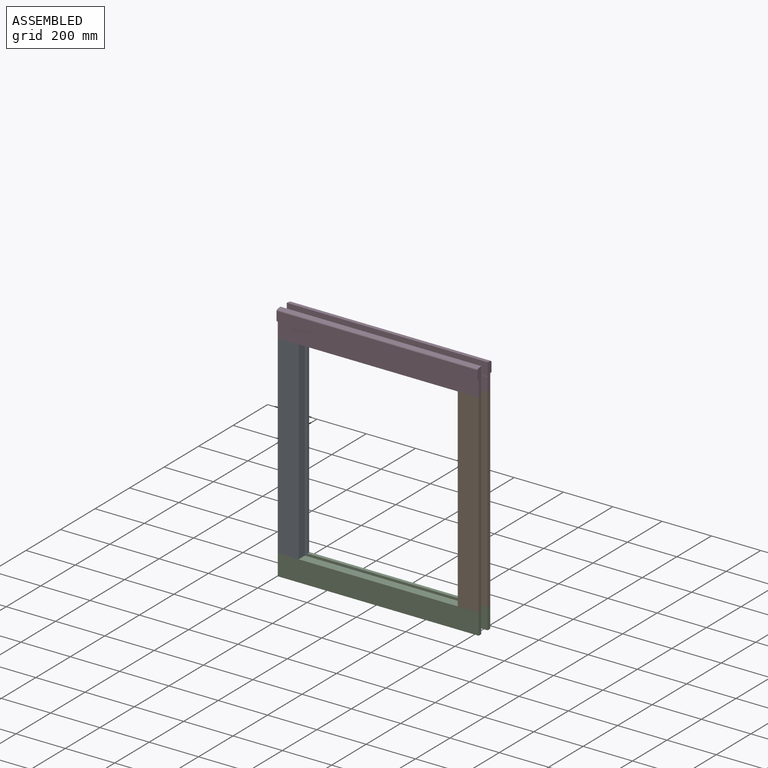
[diagram: assembled view]
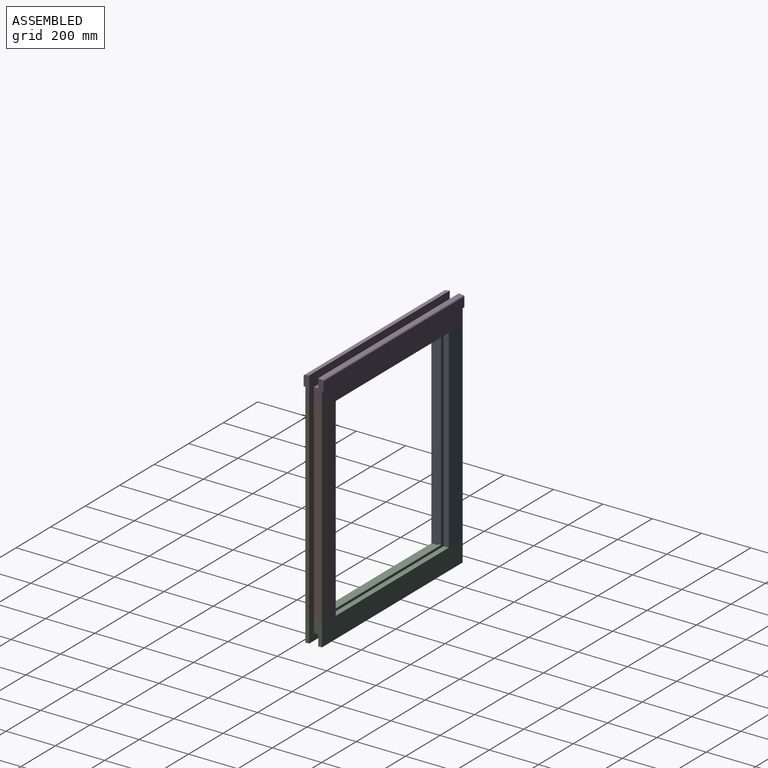
[diagram: assembled view, second angle]
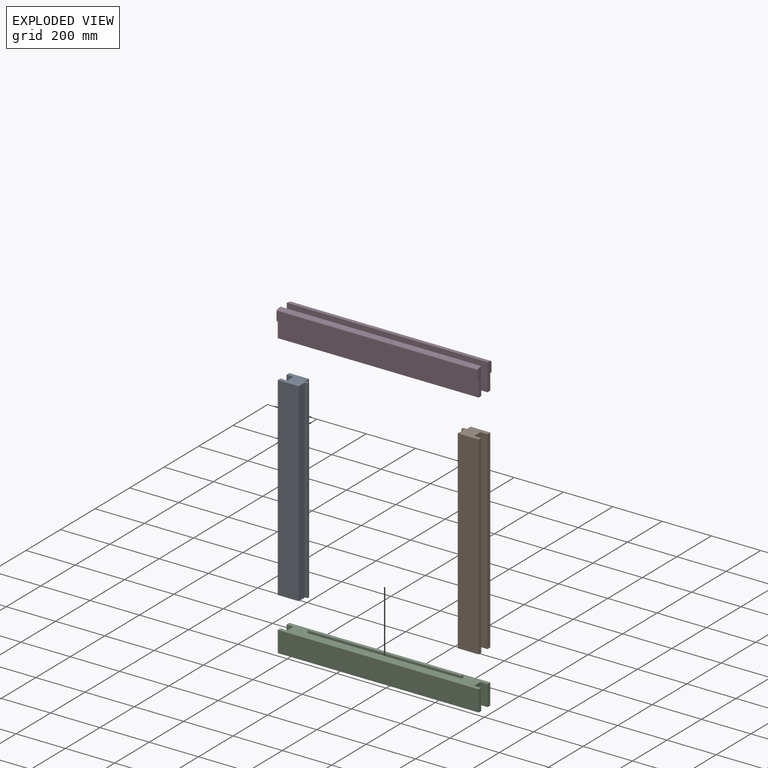
[diagram: exploded view]
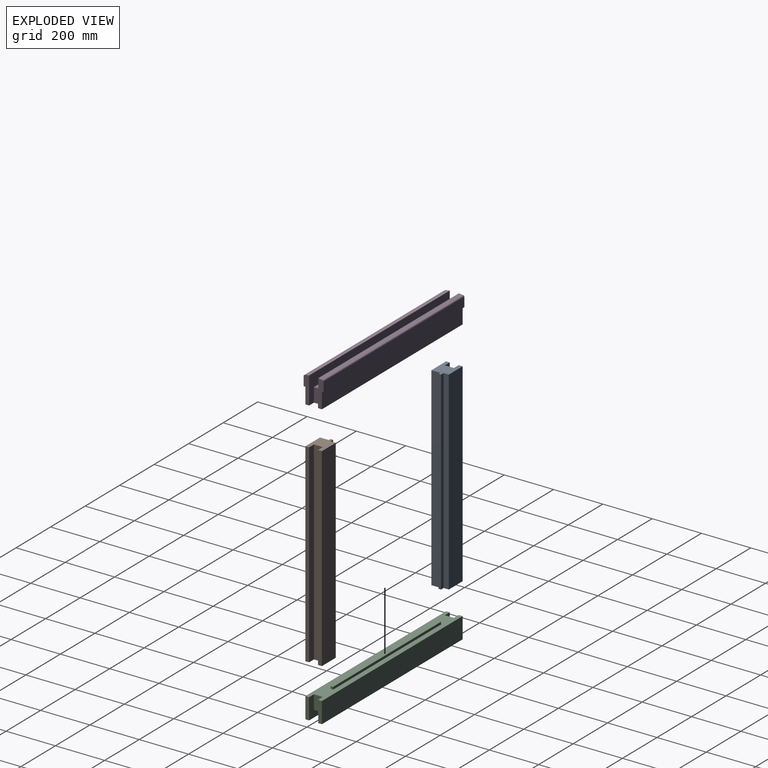
[diagram: exploded view, second angle]
ASSEMBLY  parts=4 mates=9
PART A: 14 faces, bbox 95x67x788 mm
  f0: plane 95x67mm, normal (0,0,1), area 4682mm2, adj f1,f2,f3,f4,f5,f6,f7,f8
  f1: plane 788x15mm, normal (0,1,0), area 11820mm2, adj f0,f2,f12,f13
  f2: plane 788x21mm, normal (1,0,0), area 16548mm2, adj f0,f1,f3,f13
  f3: plane 788x80mm, normal (0,1,0), area 63040mm2, adj f0,f2,f4,f13
  f4: plane 788x16mm, normal (-1,0,0), area 12608mm2, adj f0,f3,f5,f13
  f5: plane 788x28mm, normal (0,-1,0), area 22064mm2, adj f0,f4,f6,f13
  f6: plane 788x36mm, normal (-1,0,0), area 28368mm2, adj f0,f5,f7,f13
  f7: plane 788x28mm, normal (0,1,0), area 22064mm2, adj f0,f6,f8,f13
  f8: plane 788x15mm, normal (-1,0,0), area 11820mm2, adj f0,f7,f9,f13
  f9: plane 788x85mm, normal (0,-1,0), area 66980mm2, adj f0,f8,f10,f13
  f10: plane 788x36mm, normal (1,0,0), area 28368mm2, adj f0,f9,f11,f13
  f11: plane 788x10mm, normal (0,-1,0), area 7880mm2, adj f0,f10,f12,f13
  f12: plane 788x10mm, normal (1,0,0), area 7880mm2, adj f0,f1,f11,f13
  f13: plane 95x67mm, normal (0,0,-1), area 4682mm2, adj f1,f2,f3,f4,f5,f6,f7,f8
PART B: 14 faces, bbox 95x67x788 mm
  f0: plane 95x67mm, normal (0,0,1), area 4682mm2, adj f1,f2,f3,f4,f5,f6,f7,f8
  f1: plane 788x36mm, normal (-1,0,0), area 28368mm2, adj f0,f2,f10,f12
  f2: plane 788x85mm, normal (0,-1,0), area 66980mm2, adj f0,f1,f3,f10
  f3: plane 788x15mm, normal (1,0,0), area 11820mm2, adj f0,f2,f4,f10
  f4: plane 788x28mm, normal (0,1,0), area 22064mm2, adj f0,f3,f5,f10
  f5: plane 788x36mm, normal (1,0,0), area 28368mm2, adj f0,f4,f6,f10
  f6: plane 788x28mm, normal (0,-1,0), area 22064mm2, adj f0,f5,f7,f10
  f7: plane 788x16mm, normal (1,0,0), area 12608mm2, adj f0,f6,f8,f10
  f8: plane 788x80mm, normal (0,1,0), area 63040mm2, adj f0,f7,f9,f10
  f9: plane 788x21mm, normal (-1,0,0), area 16548mm2, adj f0,f8,f10,f11
  f10: plane 95x67mm, normal (0,0,-1), area 4682mm2, adj f1,f2,f3,f4,f5,f6,f7,f8
  f11: plane 788x15mm, normal (0,1,0), area 11820mm2, adj f0,f9,f10,f13
  f12: plane 788x10mm, normal (0,-1,0), area 7880mm2, adj f0,f1,f10,f13
  f13: plane 788x10mm, normal (-1,0,0), area 7880mm2, adj f0,f10,f11,f12
PART C: 21 faces, bbox 815x67x95 mm
  f0: plane 625x10mm, normal (0,0,1), area 6250mm2, adj f1,f2,f19,f20
  f1: plane 625x10mm, normal (0,1,0), area 6250mm2, adj f0,f3,f19,f20
  f2: plane 625x10mm, normal (0,-1,0), area 6250mm2, adj f0,f3,f19,f20
  f3: plane 815x67mm, normal (0,0,1), area 46339mm2, adj f1,f2,f4,f5,f6,f8,f12,f13
  f4: plane 85x16mm, normal (1,0,0), area 1332mm2, adj f3,f9,f10,f11,f12,f15
  f5: plane 85x16mm, normal (-1,0,0), area 1332mm2, adj f3,f9,f10,f11,f12,f17
  f6: plane 815x85mm, normal (0,-1,0), area 69275mm2, adj f3,f7,f13,f14
  f7: plane 815x15mm, normal (0,0,-1), area 12225mm2, adj f6,f8,f13,f14
  f8: plane 815x85mm, normal (0,1,0), area 26012mm2, adj f3,f7,f9,f13,f14,f16,f18
  f9: plane 815x37mm, normal (0,0,-1), area 28139mm2, adj f4,f5,f8,f10,f15,f16,f17,f18
  f10: plane 815x28mm, normal (0,-1,0), area 22820mm2, adj f4,f5,f9,f11
  f11: plane 815x15mm, normal (0,0,-1), area 12225mm2, adj f4,f5,f10,f12
  f12: plane 815x85mm, normal (0,1,0), area 69275mm2, adj f3,f4,f5,f11
  f13: plane 85x15mm, normal (1,0,0), area 1275mm2, adj f3,f6,f7,f8
  f14: plane 85x15mm, normal (-1,0,0), area 1275mm2, adj f3,f6,f7,f8
  f15: plane 57x28mm, normal (0,-1,0), area 1596mm2, adj f3,f4,f9,f16
  f16: plane 57x36mm, normal (1,0,0), area 2052mm2, adj f3,f8,f9,f15
  f17: plane 57x28mm, normal (0,-1,0), area 1596mm2, adj f3,f5,f9,f18
  f18: plane 57x36mm, normal (-1,0,0), area 2052mm2, adj f3,f8,f9,f17
  f19: plane 10x10mm, normal (1,0,0), area 100mm2, adj f0,f1,f2,f3
  f20: plane 10x10mm, normal (-1,0,0), area 100mm2, adj f0,f1,f2,f3
PART D: 27 faces, bbox 815x81x125 mm
  f0: plane 815x65mm, normal (0,-1,0), area 52975mm2, adj f7,f13,f14,f19
  f1: plane 739x10mm, normal (0,0,-1), area 7390mm2, adj f2,f3,f17,f18
  f2: plane 739x15mm, normal (0,-1,0), area 11085mm2, adj f1,f7,f17,f18
  f3: plane 739x15mm, normal (0,1,0), area 11085mm2, adj f1,f7,f17,f18
  f4: plane 57x36mm, normal (1,0,0), area 2052mm2, adj f6,f7,f12,f15
  f5: plane 57x36mm, normal (-1,0,0), area 2052mm2, adj f6,f7,f12,f16
  f6: plane 815x37mm, normal (0,0,1), area 28139mm2, adj f4,f5,f8,f9,f11,f12,f15,f16
  f7: plane 815x67mm, normal (0,0,-1), area 45199mm2, adj f0,f2,f3,f4,f5,f8,f9,f10
  f8: plane 110x23mm, normal (1,0,0), area 1989.9mm2, adj f6,f7,f10,f11,f15,f23,f24,f25
  f9: plane 110x23mm, normal (-1,0,0), area 1989.9mm2, adj f6,f7,f10,f11,f16,f23,f24,f25
  f10: plane 815x65mm, normal (0,1,0), area 52975mm2, adj f7,f8,f9,f23
  f11: plane 815x53mm, normal (0,-1,0), area 43195mm2, adj f6,f8,f9,f25
  f12: plane 815x110mm, normal (0,1,0), area 46387mm2, adj f4,f5,f6,f7,f13,f14,f22
  f13: plane 110x22mm, normal (1,0,0), area 1926.3mm2, adj f0,f7,f12,f19,f20,f21,f22
  f14: plane 110x22mm, normal (-1,0,0), area 1926.3mm2, adj f0,f7,f12,f19,f20,f21,f22
  f15: plane 57x28mm, normal (0,-1,0), area 1596mm2, adj f4,f6,f7,f8
  f16: plane 57x28mm, normal (0,-1,0), area 1596mm2, adj f5,f6,f7,f9
  f17: plane 15x10mm, normal (1,0,0), area 150mm2, adj f1,f2,f3,f7
  f18: plane 15x10mm, normal (-1,0,0), area 150mm2, adj f1,f2,f3,f7
  f19: plane 815x7mm, normal (0,0,-1), area 5705mm2, adj f0,f13,f14,f20
  f20: plane 815x37.5mm, normal (0,-1,0), area 30562.5mm2, adj f13,f14,f19,f21
  f21: cylinder r=5mm len=815mm, axis (-1,0,0), area 5818.1mm2, adj f13,f14,f20,f22
  f22: plane 815x17.71mm, normal (0,-0.14,0.99), area 14584.9mm2, adj f12,f13,f14,f21
  f23: plane 815x7mm, normal (0,0,-1), area 5705mm2, adj f8,f9,f10,f24
  f24: plane 815x38mm, normal (0,1,0), area 30966.1mm2, adj f8,f9,f23,f26
  f25: plane 815x17.58mm, normal (0,0.12,0.99), area 14420.4mm2, adj f8,f9,f11,f26
  f26: cylinder r=5mm len=815mm, axis (-1,0,0), area 5930.6mm2, adj f8,f9,f24,f25
PLACE A at identity
PLACE B at identity
PLACE C at identity fixed
PLACE D at identity
MATE planar A.f13 <-> C.f3  axis (0,0,-1) through (20.75,18.25,57)mm
MATE planar D.f7 <-> A.f0  axis (0,0,-1) through (759,0,845)mm
MATE planar B.f10 <-> C.f3  axis (0,0,-1) through (738.25,18.25,57)mm
MATE planar A.f9 <-> C.f6  axis (0,-1,0) through (14.5,-15,451)mm
MATE planar B.f5 <-> C.f16  axis (1,0,0) through (759,18,57)mm
MATE planar D.f0 <-> A.f9  axis (0,-1,0) through (-28,-15,877.5)mm
MATE planar A.f6 <-> C.f18  axis (-1,0,0) through (0,18,57)mm
MATE planar D.f5 <-> A.f6  axis (-1,0,0) through (0,18,873.5)mm
MATE planar B.f2 <-> C.f6  axis (0,-1,0) through (787,-15,57)mm
